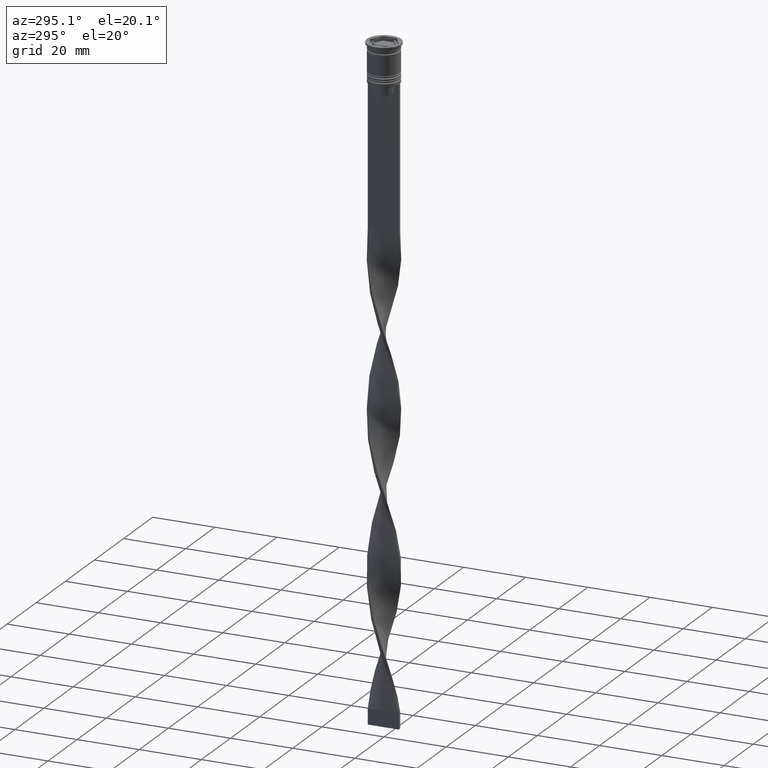
[diagram: clean part render]
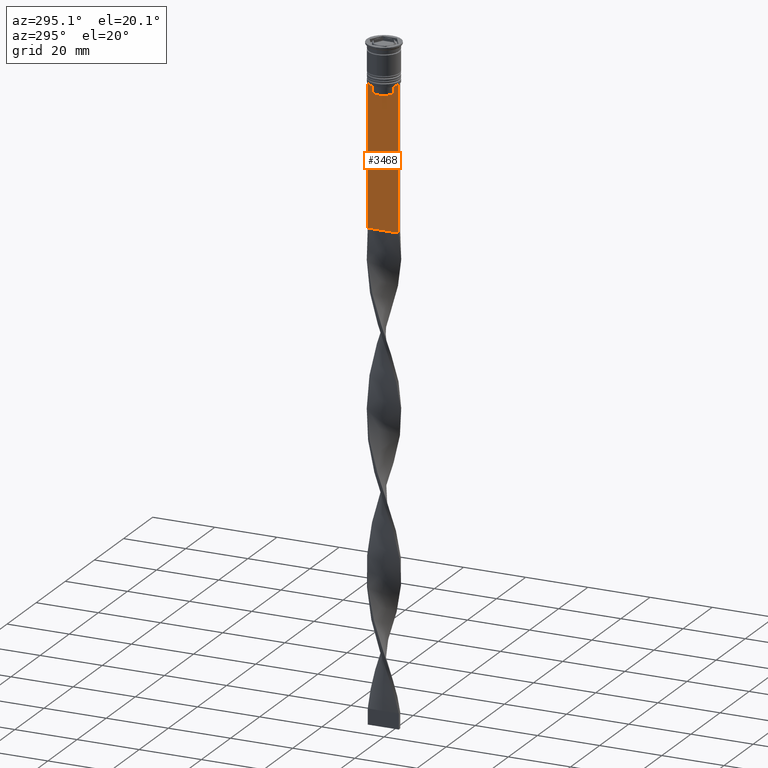
[diagram: same view with one face highlighted and labeled with its STEP entity id]
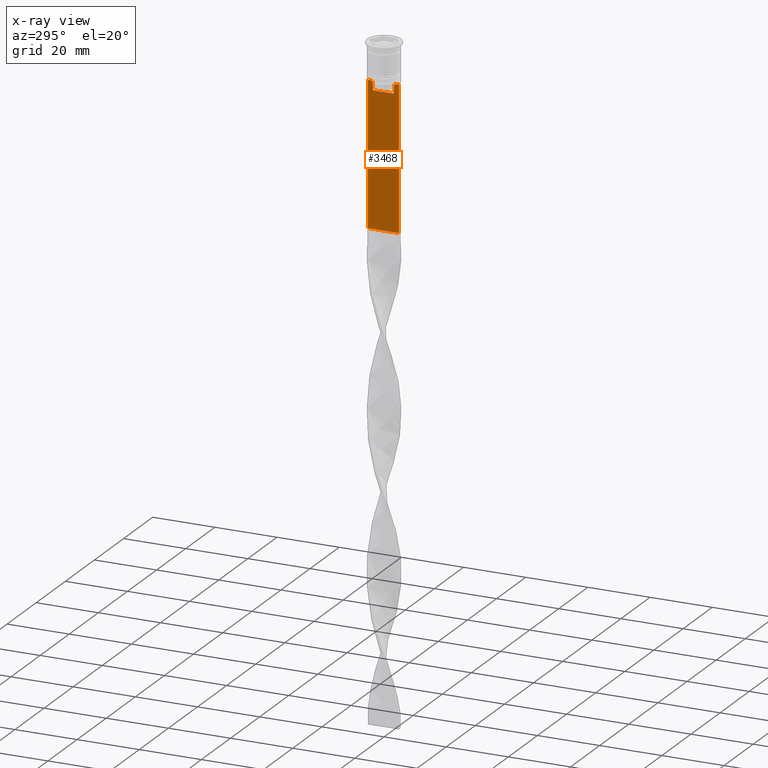
[diagram: x-ray of the same camera — body ghosted, the highlighted face saturated]
A machine part, auxiliary view. The second image highlights one B-rep face of the part: STEP entity #3468.
The next image is the same camera in x-ray: the body ghosted, the highlighted face saturated — about 0% of this face is hidden behind the body in this view.
In plain terms, the highlighted planar face has unit normal (-1, 0, 0).
Its self-contained STEP definition (entity closure, byte-faithful):
#48 = VERTEX_POINT ( 'NONE', #244 ) ;
#66 = CARTESIAN_POINT ( 'NONE',  ( -0.5000000000000000000, 3.363034344160045652, -15.50000000000000000 ) ) ;
#85 = EDGE_CURVE ( 'NONE', #205, #725, #2132, .T. ) ;
#87 = VERTEX_POINT ( 'NONE', #3293 ) ;
#112 = VERTEX_POINT ( 'NONE', #3618 ) ;
#182 = VECTOR ( 'NONE', #2704, 1000.000000000000000 ) ;
#200 = CARTESIAN_POINT ( 'NONE',  ( -0.5000000000000000000, -4.999999999999999112, -2.450124378879110054 ) ) ;
#205 = VERTEX_POINT ( 'NONE', #3133 ) ;
#209 = VERTEX_POINT ( 'NONE', #649 ) ;
#240 = CARTESIAN_POINT ( 'NONE',  ( -0.5000000000000000000, -4.999999999999999112, -12.50000000000000000 ) ) ;
#244 = CARTESIAN_POINT ( 'NONE',  ( -0.5000000000000000000, -3.363034344160045208, -13.00000000000000178 ) ) ;
#268 = LINE ( 'NONE', #895, #182 ) ;
#275 = CARTESIAN_POINT ( 'NONE',  ( -0.5000000000000000000, -4.999999999999999112, -2.450124378879110054 ) ) ;
#303 = DIRECTION ( 'NONE',  ( 0.000000000000000000, -1.000000000000000000, 0.000000000000000000 ) ) ;
#323 = DIRECTION ( 'NONE',  ( 0.000000000000000000, 1.000000000000000000, 0.000000000000000000 ) ) ;
#393 = EDGE_LOOP ( 'NONE', ( #663, #617, #2502, #1775, #3849, #997, #1277, #1634, #806, #3338, #1198, #1494 ) ) ;
#415 = CARTESIAN_POINT ( 'NONE',  ( -0.5000000000000000000, 3.699657965831574913, -12.66677026074361301 ) ) ;
#436 = CARTESIAN_POINT ( 'NONE',  ( -0.5000000000000000000, 3.867815921162742754, -12.50000000000000000 ) ) ;
#478 = FACE_OUTER_BOUND ( 'NONE', #393, .T. ) ;
#529 = EDGE_CURVE ( 'NONE', #48, #3442, #1130, .T. ) ;
#557 = CARTESIAN_POINT ( 'NONE',  ( -0.5000000000000000000, -3.363034344160045208, -13.00000000000000178 ) ) ;
#617 = ORIENTED_EDGE ( 'NONE', *, *, #85, .F. ) ;
#649 = CARTESIAN_POINT ( 'NONE',  ( -0.5000000000000000000, -3.363034344160045652, -15.50000000000000000 ) ) ;
#663 = ORIENTED_EDGE ( 'NONE', *, *, #1166, .F. ) ;
#722 = EDGE_CURVE ( 'NONE', #2188, #209, #3215, .T. ) ;
#725 = VERTEX_POINT ( 'NONE', #436 ) ;
#748 = VERTEX_POINT ( 'NONE', #1009 ) ;
#806 = ORIENTED_EDGE ( 'NONE', *, *, #529, .F. ) ;
#815 = DIRECTION ( 'NONE',  ( 0.000000000000000000, -1.000000000000000000, 0.000000000000000000 ) ) ;
#895 = CARTESIAN_POINT ( 'NONE',  ( -0.5000000000000000000, 5.000000000000000888, -2.450124378879110054 ) ) ;
#997 = ORIENTED_EDGE ( 'NONE', *, *, #3249, .F. ) ;
#1009 = CARTESIAN_POINT ( 'NONE',  ( -0.5000000000000000000, 5.000000000000000888, -12.50000000000000000 ) ) ;
#1061 = CARTESIAN_POINT ( 'NONE',  ( -0.5000000000000000000, 3.363034344160045208, 0.000000000000000000 ) ) ;
#1108 = CARTESIAN_POINT ( 'NONE',  ( -0.5000000000000000000, 3.363034344160045208, -13.00000000000000178 ) ) ;
#1130 = B_SPLINE_CURVE_WITH_KNOTS ( 'NONE', 3,
 ( #557, #2671, #3604, #2955 ),
 .UNSPECIFIED., .F., .F.,
 ( 4, 4 ),
 ( 0.01632394437298965648, 0.01703543518243618576 ),
 .UNSPECIFIED. ) ;
#1143 = DIRECTION ( 'NONE',  ( 0.000000000000000000, 0.000000000000000000, 1.000000000000000000 ) ) ;
#1166 = EDGE_CURVE ( 'NONE', #725, #3064, #3768, .T. ) ;
#1198 = ORIENTED_EDGE ( 'NONE', *, *, #722, .F. ) ;
#1265 = EDGE_CURVE ( 'NONE', #748, #205, #3377, .T. ) ;
#1277 = ORIENTED_EDGE ( 'NONE', *, *, #1972, .F. ) ;
#1457 = LINE ( 'NONE', #275, #1974 ) ;
#1490 = DIRECTION ( 'NONE',  ( 0.000000000000000000, -1.000000000000000000, 0.000000000000000000 ) ) ;
#1494 = ORIENTED_EDGE ( 'NONE', *, *, #3941, .F. ) ;
#1516 = VERTEX_POINT ( 'NONE', #3429 ) ;
#1577 = VECTOR ( 'NONE', #303, 1000.000000000000000 ) ;
#1592 = LINE ( 'NONE', #3749, #2862 ) ;
#1613 = DIRECTION ( 'NONE',  ( -0.000000000000000000, -0.000000000000000000, 1.000000000000000000 ) ) ;
#1634 = ORIENTED_EDGE ( 'NONE', *, *, #1806, .F. ) ;
#1672 = CARTESIAN_POINT ( 'NONE',  ( -0.5000000000000000000, -4.999999999999999112, -12.50000000000000000 ) ) ;
#1775 = ORIENTED_EDGE ( 'NONE', *, *, #2599, .T. ) ;
#1806 = EDGE_CURVE ( 'NONE', #3442, #87, #2960, .T. ) ;
#1832 = CARTESIAN_POINT ( 'NONE',  ( -0.5000000000000000000, -4.999999999999999112, -12.50000000000000000 ) ) ;
#1840 = CARTESIAN_POINT ( 'NONE',  ( -0.5000000000000000000, 3.363034344160045208, -13.00000000000000178 ) ) ;
#1972 = EDGE_CURVE ( 'NONE', #87, #1516, #3983, .T. ) ;
#1974 = VECTOR ( 'NONE', #2138, 1000.000000000000000 ) ;
#2042 = DIRECTION ( 'NONE',  ( 0.000000000000000000, -1.000000000000000000, 0.000000000000000000 ) ) ;
#2089 = CARTESIAN_POINT ( 'NONE',  ( -0.5000000000000000000, -4.999999999999999112, -12.50000000000000000 ) ) ;
#2132 = LINE ( 'NONE', #1832, #3759 ) ;
#2138 = DIRECTION ( 'NONE',  ( 0.000000000000000000, 0.000000000000000000, -1.000000000000000000 ) ) ;
#2148 = VECTOR ( 'NONE', #815, 1000.000000000000000 ) ;
#2154 = VECTOR ( 'NONE', #2042, 1000.000000000000000 ) ;
#2188 = VERTEX_POINT ( 'NONE', #66 ) ;
#2268 = CARTESIAN_POINT ( 'NONE',  ( -0.5000000000000000000, 3.531412678228260216, -12.83345231756357840 ) ) ;
#2274 = DIRECTION ( 'NONE',  ( 0.000000000000000000, 0.000000000000000000, -1.000000000000000000 ) ) ;
#2305 = EDGE_CURVE ( 'NONE', #209, #48, #1592, .T. ) ;
#2453 = LINE ( 'NONE', #3067, #3910 ) ;
#2502 = ORIENTED_EDGE ( 'NONE', *, *, #1265, .F. ) ;
#2528 = CARTESIAN_POINT ( 'NONE',  ( -0.5000000000000000000, 3.867815921162742754, -12.50000000000000000 ) ) ;
#2599 = EDGE_CURVE ( 'NONE', #748, #3496, #268, .T. ) ;
#2628 = CARTESIAN_POINT ( 'NONE',  ( -0.5000000000000000000, 3.399999999999998135, -15.50000000000000000 ) ) ;
#2634 = DIRECTION ( 'NONE',  ( -1.000000000000000000, 0.000000000000000000, 0.000000000000000000 ) ) ;
#2664 = DIRECTION ( 'NONE',  ( 0.000000000000000000, -1.000000000000000000, 0.000000000000000000 ) ) ;
#2671 = CARTESIAN_POINT ( 'NONE',  ( -0.5000000000000000000, -3.531412985305424801, -12.83345201382502765 ) ) ;
#2677 = AXIS2_PLACEMENT_3D ( 'NONE', #200, #2634, #1143 ) ;
#2704 = DIRECTION ( 'NONE',  ( 0.000000000000000000, 0.000000000000000000, -1.000000000000000000 ) ) ;
#2862 = VECTOR ( 'NONE', #1613, 1000.000000000000000 ) ;
#2955 = CARTESIAN_POINT ( 'NONE',  ( -0.5000000000000000000, -3.867815921162742754, -12.50000000000000000 ) ) ;
#2960 = LINE ( 'NONE', #1672, #2154 ) ;
#3064 = VERTEX_POINT ( 'NONE', #1108 ) ;
#3067 = CARTESIAN_POINT ( 'NONE',  ( -0.5000000000000000000, -4.999999999999999112, -58.50000000000000000 ) ) ;
#3133 = CARTESIAN_POINT ( 'NONE',  ( -0.5000000000000000000, 4.874423042781575788, -12.50000000000000000 ) ) ;
#3173 = VECTOR ( 'NONE', #1490, 1000.000000000000000 ) ;
#3215 = LINE ( 'NONE', #2628, #2148 ) ;
#3246 = CARTESIAN_POINT ( 'NONE',  ( -0.5000000000000000000, -3.867815921162742754, -12.50000000000000000 ) ) ;
#3249 = EDGE_CURVE ( 'NONE', #1516, #112, #1457, .T. ) ;
#3285 = PLANE ( 'NONE',  #2677 ) ;
#3293 = CARTESIAN_POINT ( 'NONE',  ( -0.5000000000000000000, -4.874423042781575788, -12.50000000000000000 ) ) ;
#3303 = CARTESIAN_POINT ( 'NONE',  ( -0.5000000000000000000, 5.000000000000000888, -58.50000000000000000 ) ) ;
#3329 = VECTOR ( 'NONE', #2274, 1000.000000000000000 ) ;
#3338 = ORIENTED_EDGE ( 'NONE', *, *, #2305, .F. ) ;
#3377 = LINE ( 'NONE', #2089, #3173 ) ;
#3429 = CARTESIAN_POINT ( 'NONE',  ( -0.5000000000000000000, -4.999999999999999112, -12.50000000000000000 ) ) ;
#3442 = VERTEX_POINT ( 'NONE', #3246 ) ;
#3468 = ADVANCED_FACE ( 'NONE', ( #478 ), #3285, .T. ) ;
#3496 = VERTEX_POINT ( 'NONE', #3303 ) ;
#3604 = CARTESIAN_POINT ( 'NONE',  ( -0.5000000000000000000, -3.699658232838647365, -12.66676999593996555 ) ) ;
#3618 = CARTESIAN_POINT ( 'NONE',  ( -0.5000000000000000000, -4.999999999999999112, -58.50000000000000000 ) ) ;
#3729 = EDGE_CURVE ( 'NONE', #112, #3496, #2453, .T. ) ;
#3749 = CARTESIAN_POINT ( 'NONE',  ( -0.5000000000000000000, -3.363034344160045208, 0.000000000000000000 ) ) ;
#3759 = VECTOR ( 'NONE', #2664, 1000.000000000000000 ) ;
#3768 = B_SPLINE_CURVE_WITH_KNOTS ( 'NONE', 3,
 ( #2528, #415, #2268, #1840 ),
 .UNSPECIFIED., .F., .F.,
 ( 4, 4 ),
 ( 0.006644825462451552783, 0.007355321358912435097 ),
 .UNSPECIFIED. ) ;
#3812 = LINE ( 'NONE', #1061, #3329 ) ;
#3849 = ORIENTED_EDGE ( 'NONE', *, *, #3729, .F. ) ;
#3910 = VECTOR ( 'NONE', #323, 1000.000000000000000 ) ;
#3941 = EDGE_CURVE ( 'NONE', #3064, #2188, #3812, .T. ) ;
#3983 = LINE ( 'NONE', #240, #1577 ) ;